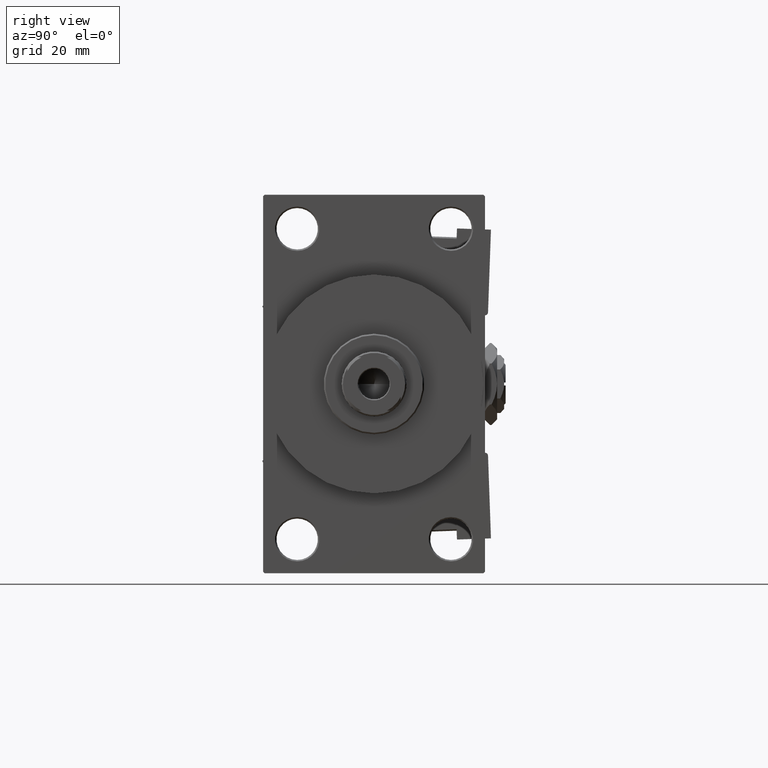
[diagram: clean part render]
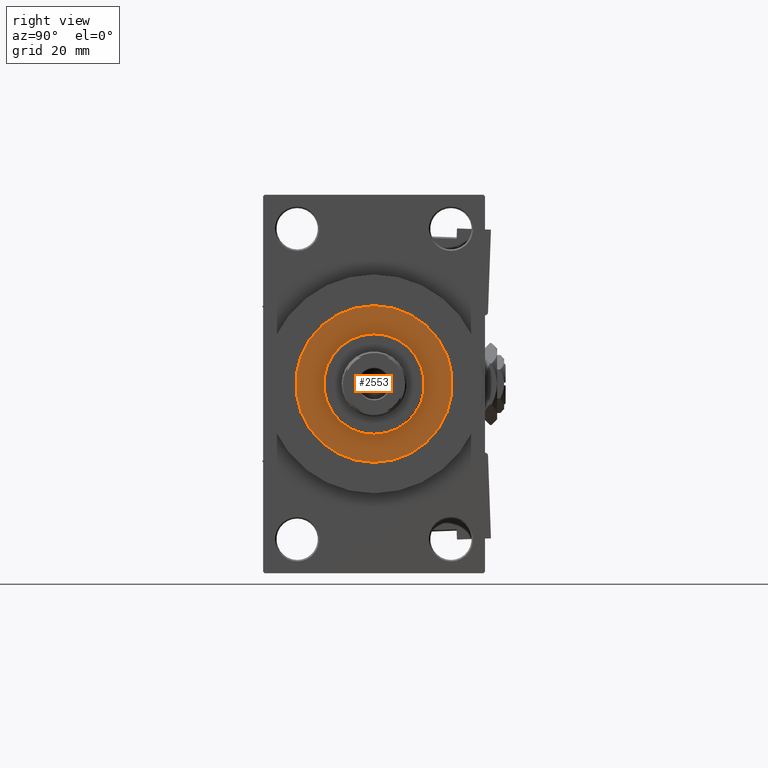
[diagram: same view with one face highlighted and labeled with its STEP entity id]
A machine part, right view. The second image highlights one B-rep face of the part: STEP entity #2553.
In plain terms, the highlighted planar face has unit normal (1, -0, -0).
Its self-contained STEP definition (entity closure, byte-faithful):
#788 = DIRECTION ( 'NONE',  ( 1.000000000000000000, 0.000000000000000000, 0.000000000000000000 ) ) ;
#2553 = ADVANCED_FACE ( 'NONE', ( #51380, #23760 ), #12572, .T. ) ;
#2650 = DIRECTION ( 'NONE',  ( 1.000000000000000000, 0.000000000000000000, 0.000000000000000000 ) ) ;
#7451 = EDGE_LOOP ( 'NONE', ( #17332, #16218 ) ) ;
#8403 = DIRECTION ( 'NONE',  ( 0.000000000000000000, 0.000000000000000000, 1.000000000000000000 ) ) ;
#8514 = DIRECTION ( 'NONE',  ( 0.000000000000000000, 0.000000000000000000, 1.000000000000000000 ) ) ;
#8733 = CARTESIAN_POINT ( 'NONE',  ( 26.50000000000000355, 3.245314017740486554E-15, 43.25999999999999801 ) ) ;
#9213 = EDGE_CURVE ( 'NONE', #10721, #11041, #26922, .T. ) ;
#10072 = CARTESIAN_POINT ( 'NONE',  ( 0.000000000000000000, 0.000000000000000000, 43.25999999999999801 ) ) ;
#10715 = DIRECTION ( 'NONE',  ( 0.000000000000000000, 0.000000000000000000, 1.000000000000000000 ) ) ;
#10721 = VERTEX_POINT ( 'NONE', #8733 ) ;
#11041 = VERTEX_POINT ( 'NONE', #25583 ) ;
#11687 = CIRCLE ( 'NONE', #48258, 17.00000000000000000 ) ;
#11868 = AXIS2_PLACEMENT_3D ( 'NONE', #19520, #43744, #788 ) ;
#12572 = PLANE ( 'NONE',  #43402 ) ;
#15799 = ORIENTED_EDGE ( 'NONE', *, *, #25279, .F. ) ;
#16218 = ORIENTED_EDGE ( 'NONE', *, *, #9213, .T. ) ;
#17332 = ORIENTED_EDGE ( 'NONE', *, *, #40799, .T. ) ;
#19520 = CARTESIAN_POINT ( 'NONE',  ( 0.000000000000000000, 0.000000000000000000, 43.25999999999999801 ) ) ;
#21390 = AXIS2_PLACEMENT_3D ( 'NONE', #44184, #8514, #35867 ) ;
#22788 = DIRECTION ( 'NONE',  ( 1.000000000000000000, 0.000000000000000000, 0.000000000000000000 ) ) ;
#23760 = FACE_OUTER_BOUND ( 'NONE', #7451, .T. ) ;
#25279 = EDGE_CURVE ( 'NONE', #33415, #34197, #11687, .T. ) ;
#25583 = CARTESIAN_POINT ( 'NONE',  ( -26.50000000000000355, 0.000000000000000000, 43.25999999999999801 ) ) ;
#25688 = DIRECTION ( 'NONE',  ( 0.000000000000000000, 0.000000000000000000, 1.000000000000000000 ) ) ;
#26922 = CIRCLE ( 'NONE', #48526, 26.50000000000000355 ) ;
#30012 = EDGE_CURVE ( 'NONE', #34197, #33415, #42619, .T. ) ;
#31603 = EDGE_LOOP ( 'NONE', ( #42320, #15799 ) ) ;
#32255 = CARTESIAN_POINT ( 'NONE',  ( 17.00000000000000000, 2.081899558550500280E-15, 43.25999999999999801 ) ) ;
#33415 = VERTEX_POINT ( 'NONE', #32255 ) ;
#34197 = VERTEX_POINT ( 'NONE', #48705 ) ;
#35756 = DIRECTION ( 'NONE',  ( 1.000000000000000000, 0.000000000000000000, -0.000000000000000000 ) ) ;
#35867 = DIRECTION ( 'NONE',  ( 1.000000000000000000, 0.000000000000000000, 0.000000000000000000 ) ) ;
#40551 = CIRCLE ( 'NONE', #21390, 26.50000000000000355 ) ;
#40799 = EDGE_CURVE ( 'NONE', #11041, #10721, #40551, .T. ) ;
#42320 = ORIENTED_EDGE ( 'NONE', *, *, #30012, .F. ) ;
#42619 = CIRCLE ( 'NONE', #11868, 17.00000000000000000 ) ;
#42982 = CARTESIAN_POINT ( 'NONE',  ( 0.000000000000000000, 0.000000000000000000, 43.25999999999999801 ) ) ;
#43402 = AXIS2_PLACEMENT_3D ( 'NONE', #43559, #8403, #35756 ) ;
#43559 = CARTESIAN_POINT ( 'NONE',  ( 0.000000000000000000, 0.000000000000000000, 43.25999999999999801 ) ) ;
#43744 = DIRECTION ( 'NONE',  ( 0.000000000000000000, 0.000000000000000000, 1.000000000000000000 ) ) ;
#44184 = CARTESIAN_POINT ( 'NONE',  ( 0.000000000000000000, 0.000000000000000000, 43.25999999999999801 ) ) ;
#48258 = AXIS2_PLACEMENT_3D ( 'NONE', #10072, #25688, #22788 ) ;
#48526 = AXIS2_PLACEMENT_3D ( 'NONE', #42982, #10715, #2650 ) ;
#48705 = CARTESIAN_POINT ( 'NONE',  ( -17.00000000000000000, 0.000000000000000000, 43.25999999999999801 ) ) ;
#51380 = FACE_BOUND ( 'NONE', #31603, .T. ) ;